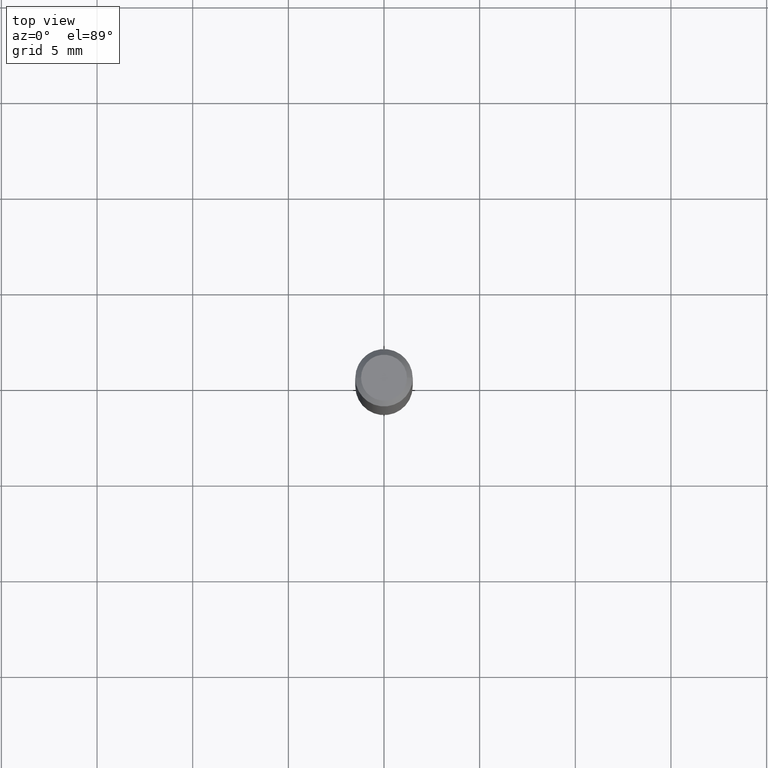
[diagram: clean part render]
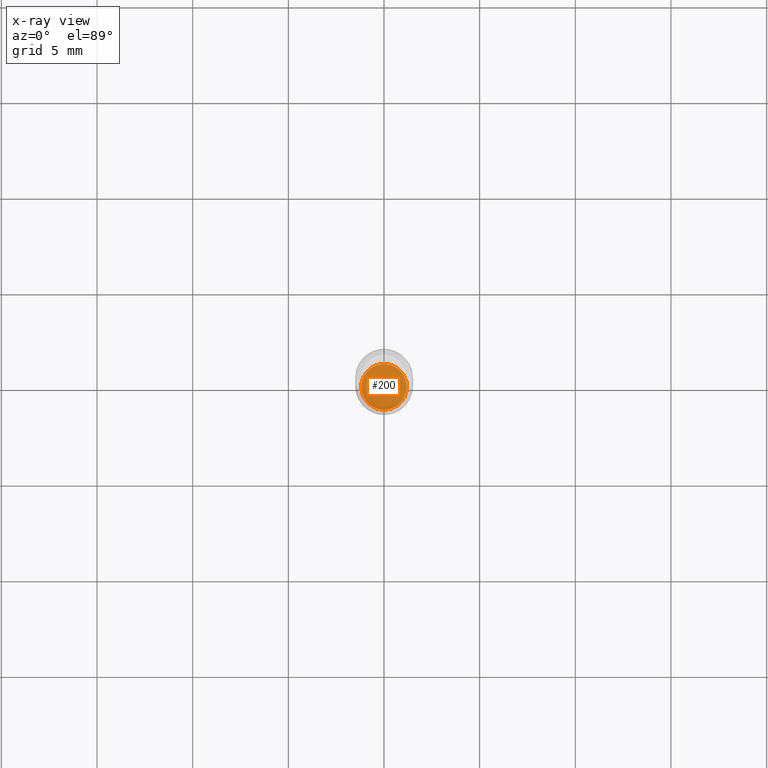
[diagram: x-ray — body ghosted, one internal face saturated and labeled with its STEP entity id]
A machine part, top view, then the same camera in x-ray: the body is ghosted and one INTERNAL B-rep face — a face not visible from any outside direction — is saturated and labeled: STEP entity #200.
In plain terms, the highlighted planar face has unit normal (-0, 0, 1).
Its self-contained STEP definition (entity closure, byte-faithful):
#19 = EDGE_CURVE ( 'NONE', #100, #71, #459, .T. ) ;
#39 = EDGE_CURVE ( 'NONE', #71, #100, #267, .T. ) ;
#54 = DIRECTION ( 'NONE',  ( 1.000000000000000000, -6.982962677686264344E-15, 0.000000000000000000 ) ) ;
#71 = VERTEX_POINT ( 'NONE', #470 ) ;
#77 = DIRECTION ( 'NONE',  ( -2.445468806185136597E-29, 3.491481338843145583E-15, 1.000000000000000000 ) ) ;
#93 = PLANE ( 'NONE',  #166 ) ;
#100 = VERTEX_POINT ( 'NONE', #204 ) ;
#123 = DIRECTION ( 'NONE',  ( -2.445468806185136597E-29, 3.491481338843145583E-15, 1.000000000000000000 ) ) ;
#166 = AXIS2_PLACEMENT_3D ( 'NONE', #478, #284, #215 ) ;
#184 = EDGE_LOOP ( 'NONE', ( #425, #281 ) ) ;
#192 = CARTESIAN_POINT ( 'NONE',  ( 2.676565608369632355E-29, -3.821426325363822773E-15, -1.094500000000000028 ) ) ;
#200 = ADVANCED_FACE ( 'NONE', ( #323 ), #93, .F. ) ;
#204 = CARTESIAN_POINT ( 'NONE',  ( 0.04694999999999999174, -4.149276423081192976E-15, -1.094500000000000028 ) ) ;
#215 = DIRECTION ( 'NONE',  ( 1.000000000000000000, -6.982962677686265922E-15, 4.876176775795935793E-29 ) ) ;
#220 = AXIS2_PLACEMENT_3D ( 'NONE', #393, #77, #402 ) ;
#267 = CIRCLE ( 'NONE', #220, 0.04694999999999999174 ) ;
#268 = AXIS2_PLACEMENT_3D ( 'NONE', #192, #123, #54 ) ;
#281 = ORIENTED_EDGE ( 'NONE', *, *, #39, .F. ) ;
#284 = DIRECTION ( 'NONE',  ( -2.438088387897960049E-29, 3.491481338843145188E-15, 1.000000000000000000 ) ) ;
#323 = FACE_OUTER_BOUND ( 'NONE', #184, .T. ) ;
#393 = CARTESIAN_POINT ( 'NONE',  ( 2.676565608369632355E-29, -3.821426325363822773E-15, -1.094500000000000028 ) ) ;
#402 = DIRECTION ( 'NONE',  ( 1.000000000000000000, -6.982962677686264344E-15, 0.000000000000000000 ) ) ;
#425 = ORIENTED_EDGE ( 'NONE', *, *, #19, .F. ) ;
#459 = CIRCLE ( 'NONE', #268, 0.04694999999999999174 ) ;
#470 = CARTESIAN_POINT ( 'NONE',  ( -0.04694999999999999174, -3.485177283750344594E-15, -1.094500000000000028 ) ) ;
#478 = CARTESIAN_POINT ( 'NONE',  ( 4.530180386399367457E-30, -7.005673001684947290E-15, -1.094500000000000028 ) ) ;